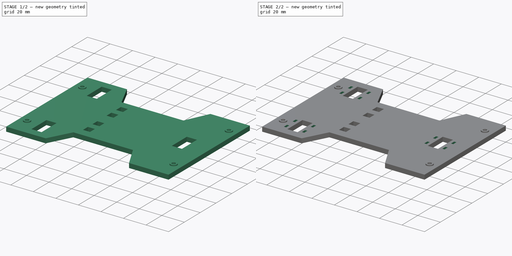
[diagram: build sequence overview — one tinted view per stage of 2, left to right]
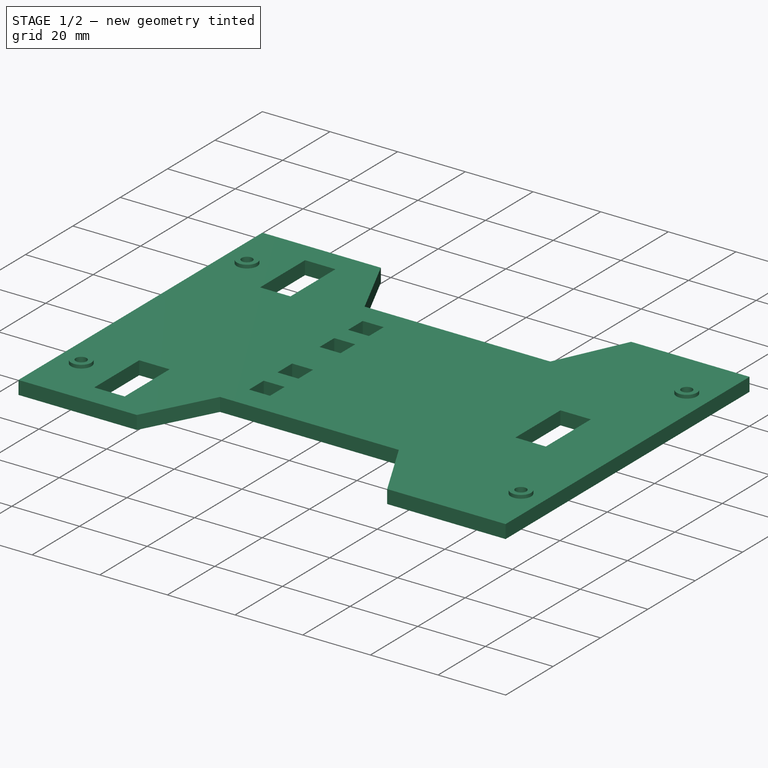
[diagram: stage 1 of 2 — iso view after this stage's code; geometry added in this stage tinted green]
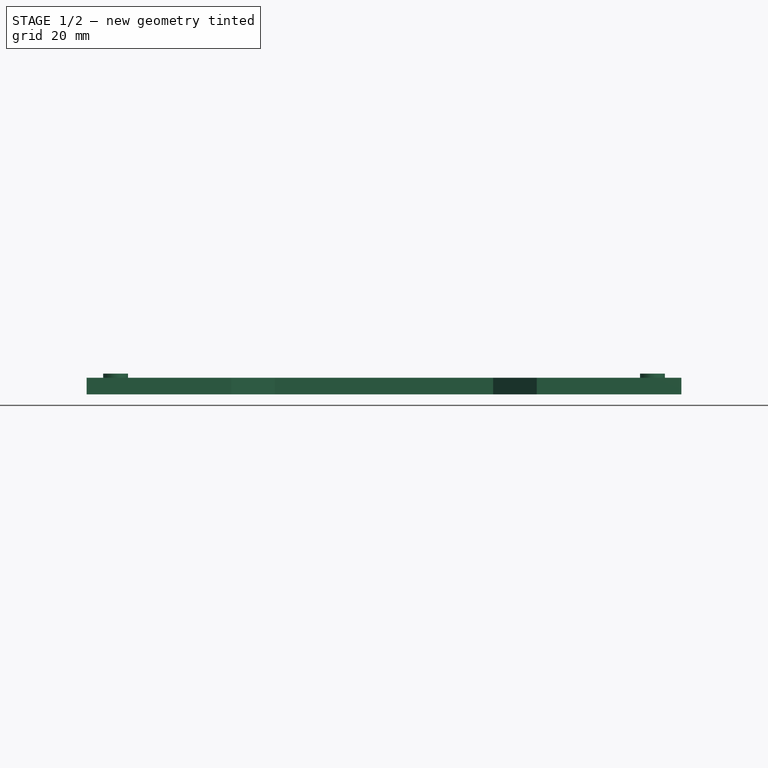
[diagram: stage 1 of 2 — front view after this stage's code; geometry added in this stage tinted green]
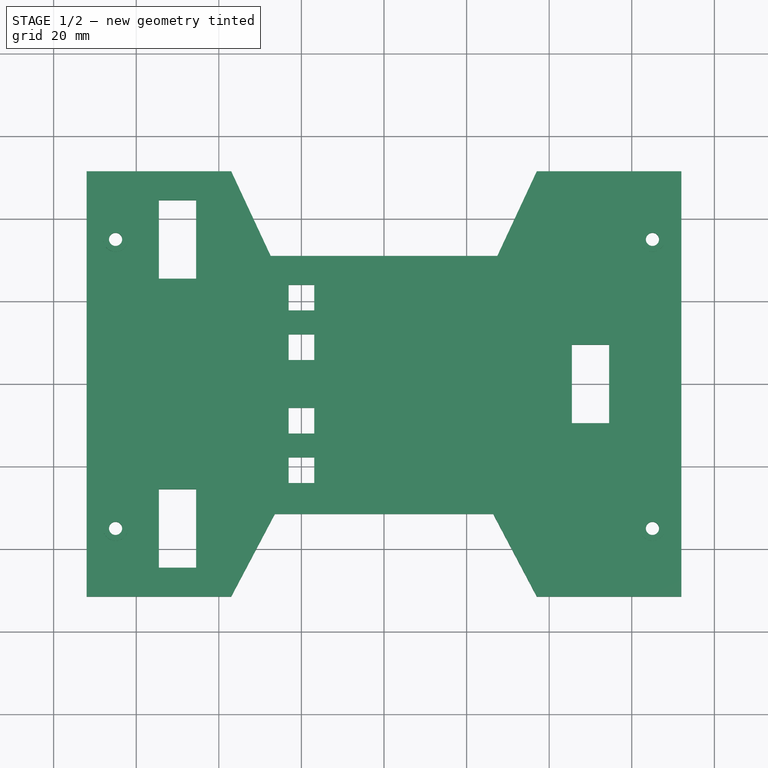
[diagram: stage 1 of 2 — top view after this stage's code; geometry added in this stage tinted green]
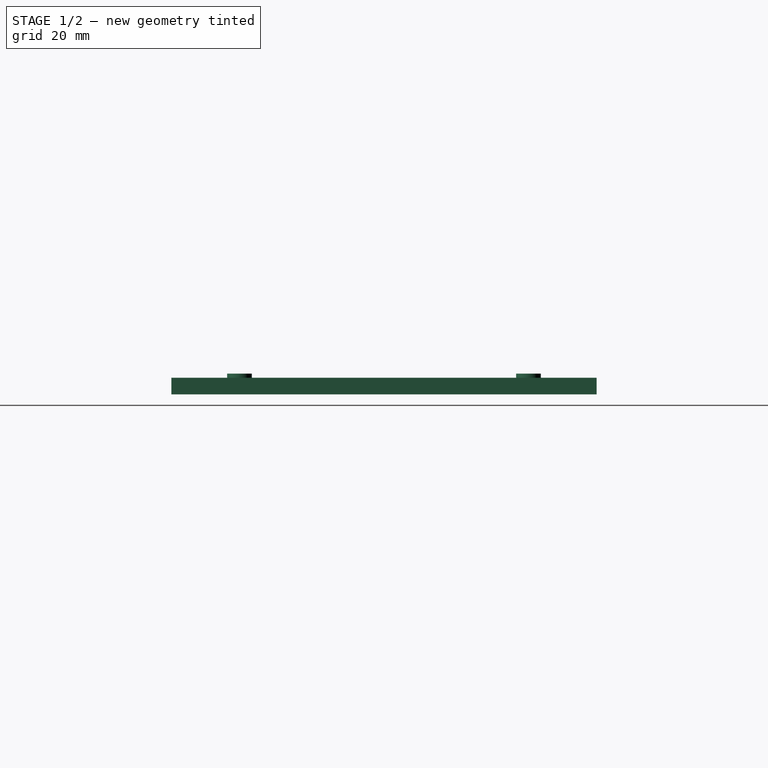
[diagram: stage 1 of 2 — right view after this stage's code; geometry added in this stage tinted green]
FCSTD DOCUMENT  (FreeCAD 0.14R3702 (Git))
Label: y-carriage-4points
License: CC-BY 3.0
LicenseURL: http://creativecommons.org/licenses/by/3.0/
objects: Sketcher::SketchObject×3, PartDesign::Pad×2, PartDesign::Pocket×1
note: 9 computed .brp shape members not serialized (recipe doc carries the construction recipe); baked Part::Feature solids carry a one-line shape summary decoded from their .brp

FEATURE [Sketcher::SketchObject] Sketch  label="YCarriageSketch"
  sketch-geometry (52):
    g0: LineSegment StartX=-72 StartY=51.5 StartZ=0 EndX=-37 EndY=51.5 EndZ=0
    g1: LineSegment StartX=-37 StartY=51.5 StartZ=0 EndX=-27.4407 EndY=31 EndZ=0
    g2: LineSegment StartX=-27.4407 StartY=31 StartZ=0 EndX=27.4407 EndY=31 EndZ=0
    g3: LineSegment StartX=27.4407 StartY=31 StartZ=0 EndX=37 EndY=51.5 EndZ=0
    g4: LineSegment StartX=37 StartY=51.5 StartZ=0 EndX=72 EndY=51.5 EndZ=0
    g5: LineSegment StartX=72 StartY=51.5 StartZ=0 EndX=72 EndY=-51.5 EndZ=0
    g6: LineSegment StartX=72 StartY=-51.5 StartZ=0 EndX=37 EndY=-51.5 EndZ=0
    g7: LineSegment StartX=37 StartY=-51.5 StartZ=0 EndX=26.4345 EndY=-31.5 EndZ=0
    g8: LineSegment StartX=26.4345 StartY=-31.5 StartZ=0 EndX=-26.4345 EndY=-31.5 EndZ=0
    g9: LineSegment StartX=-26.4345 StartY=-31.5 StartZ=0 EndX=-37 EndY=-51.5 EndZ=0
    g10: LineSegment StartX=-37 StartY=-51.5 StartZ=0 EndX=-72 EndY=-51.5 EndZ=0
    g11: LineSegment StartX=-72 StartY=-51.5 StartZ=0 EndX=-72 EndY=51.5 EndZ=0
    g12: LineSegment StartX=-54.5 StartY=44.5 StartZ=0 EndX=-45.5 EndY=44.5 EndZ=0
    g13: LineSegment StartX=-45.5 StartY=44.5 StartZ=0 EndX=-45.5 EndY=25.5 EndZ=0
    g14: LineSegment StartX=-45.5 StartY=25.5 StartZ=0 EndX=-54.5 EndY=25.5 EndZ=0
    g15: LineSegment StartX=-54.5 StartY=25.5 StartZ=0 EndX=-54.5 EndY=44.5 EndZ=0
    g16: LineSegment [constr] StartX=-50 StartY=-51.5 StartZ=0 EndX=-50 EndY=51.5 EndZ=0
    g17: LineSegment [constr] StartX=50 StartY=51.5 StartZ=0 EndX=50 EndY=-51.5 EndZ=0
    g18: LineSegment StartX=-54.5 StartY=-25.5 StartZ=0 EndX=-45.5 EndY=-25.5 EndZ=0
    g19: LineSegment StartX=-45.5 StartY=-25.5 StartZ=0 EndX=-45.5 EndY=-44.5 EndZ=0
    g20: LineSegment StartX=-45.5 StartY=-44.5 StartZ=0 EndX=-54.5 EndY=-44.5 EndZ=0
    g21: LineSegment StartX=-54.5 StartY=-44.5 StartZ=0 EndX=-54.5 EndY=-25.5 EndZ=0
    g22: LineSegment StartX=45.5 StartY=9.5 StartZ=0 EndX=54.5 EndY=9.5 EndZ=0
    g23: LineSegment StartX=54.5 StartY=9.5 StartZ=0 EndX=54.5 EndY=-9.5 EndZ=0
    g24: LineSegment StartX=54.5 StartY=-9.5 StartZ=0 EndX=45.5 EndY=-9.5 EndZ=0
    g25: LineSegment StartX=45.5 StartY=-9.5 StartZ=0 EndX=45.5 EndY=9.5 EndZ=0
    g26: LineSegment [constr] StartX=-50 StartY=0 StartZ=0 EndX=50 EndY=0 EndZ=0
    g27: Circle CenterX=65 CenterY=35 CenterZ=0 NormalX=0 NormalY=0 NormalZ=1 Radius=1.6
    g28: Circle CenterX=65 CenterY=-35 CenterZ=0 NormalX=0 NormalY=0 NormalZ=1 Radius=1.6
    g29: Circle CenterX=-65 CenterY=35 CenterZ=0 NormalX=0 NormalY=0 NormalZ=1 Radius=1.6
    g30: Circle CenterX=-65 CenterY=-35 CenterZ=0 NormalX=0 NormalY=0 NormalZ=1 Radius=1.6
    g31: LineSegment [constr] StartX=-65 StartY=35 StartZ=0 EndX=65 EndY=35 EndZ=0
    g32: LineSegment [constr] StartX=65 StartY=35 StartZ=0 EndX=65 EndY=-35 EndZ=0
    g33: LineSegment [constr] StartX=65 StartY=-35 StartZ=0 EndX=-65 EndY=-35 EndZ=0
    g34: LineSegment [constr] StartX=-65 StartY=-35 StartZ=0 EndX=-65 EndY=35 EndZ=0
    g35: LineSegment [constr] StartX=-20 StartY=24 StartZ=0 EndX=-20 EndY=-24 EndZ=0
    g36: LineSegment StartX=-23.1 StartY=24 StartZ=0 EndX=-16.9 EndY=24 EndZ=0
    g37: LineSegment StartX=-16.9 StartY=24 StartZ=0 EndX=-16.9 EndY=17.8 EndZ=0
    g38: LineSegment StartX=-16.9 StartY=17.8 StartZ=0 EndX=-23.1 EndY=17.8 EndZ=0
    g39: LineSegment StartX=-23.1 StartY=17.8 StartZ=0 EndX=-23.1 EndY=24 EndZ=0
    g40: LineSegment StartX=-23.1 StartY=12 StartZ=0 EndX=-16.9 EndY=12 EndZ=0
    g41: LineSegment StartX=-16.9 StartY=12 StartZ=0 EndX=-16.9 EndY=5.8 EndZ=0
    g42: LineSegment StartX=-16.9 StartY=5.8 StartZ=0 EndX=-23.1 EndY=5.8 EndZ=0
    g43: LineSegment StartX=-23.1 StartY=5.8 StartZ=0 EndX=-23.1 EndY=12 EndZ=0
    g44: LineSegment StartX=-23.1 StartY=-17.8 StartZ=0 EndX=-16.9 EndY=-17.8 EndZ=0
    g45: LineSegment StartX=-16.9 StartY=-17.8 StartZ=0 EndX=-16.9 EndY=-24 EndZ=0
    g46: LineSegment StartX=-16.9 StartY=-24 StartZ=0 EndX=-23.1 EndY=-24 EndZ=0
    g47: LineSegment StartX=-23.1 StartY=-24 StartZ=0 EndX=-23.1 EndY=-17.8 EndZ=0
    g48: LineSegment StartX=-23.1 StartY=-5.8 StartZ=0 EndX=-16.9 EndY=-5.8 EndZ=0
    g49: LineSegment StartX=-16.9 StartY=-5.8 StartZ=0 EndX=-16.9 EndY=-12 EndZ=0
    g50: LineSegment StartX=-16.9 StartY=-12 StartZ=0 EndX=-23.1 EndY=-12 EndZ=0
    g51: LineSegment StartX=-23.1 StartY=-12 StartZ=0 EndX=-23.1 EndY=-5.8 EndZ=0
  constraints (153):
    c: Coincident(g0,g1)
    c: Coincident(g1,g2)
    c: Coincident(g2,g3)
    c: Coincident(g3,g4)
    c: Coincident(g4,g5)
    c: Coincident(g5,g6)
    c: Coincident(g6,g7)
    c: Coincident(g7,g8)
    c: Coincident(g8,g9)
    c: Coincident(g9,g10)
    c: Coincident(g10,g11)
    c: Coincident(g0,g11)
    c: Horizontal(g0)
    c: Horizontal(g4)
    c: Horizontal(g2)
    c: Horizontal(g10)
    c: Horizontal(g6)
    c: Vertical(g11)
    c: Vertical(g5)
    c: Equal(g0,g4)
    c: Equal(g4,g6)
    c: Equal(g6,g10)
    c: Angle(g3,g4) = 2.00713
    c: DistanceY(g5) = -103
    c: Equal(g11,g5)
    c: DistanceX(g10,g5) = 144
    c: Symmetric(g5,g10,g-2)
    c: Symmetric(g7,g8,g-2)
    c: DistanceY(g6,g7) = 20
    c: Equal(g3,g1)
    c: Equal(g1,g9)
    c: Equal(g9,g7)
    c: Symmetric(g10,g0,g-1)
    c: Coincident(g12,g13)
    c: Coincident(g13,g14)
    c: Coincident(g14,g15)
    c: Coincident(g15,g12)
    c: Horizontal(g12)
    c: Horizontal(g14)
    c: Vertical(g13)
    c: Vertical(g15)
    c: PointOnObject(g16,g0)
    c: PointOnObject(g16,g10)
    c: Vertical(g17)
    c: PointOnObject(g17,g4)
    c: PointOnObject(g17,g6)
    c: DistanceX(g12) = 9
    c: DistanceY(g13) = -19
    c: Symmetric(g13,g14,g16)
    c: Coincident(g18,g19)
    c: Coincident(g19,g20)
    c: Coincident(g20,g21)
    c: Coincident(g21,g18)
    c: Horizontal(g18)
    c: Horizontal(g20)
    c: Vertical(g19)
    c: Vertical(g21)
    c: Coincident(g22,g23)
    c: Coincident(g23,g24)
    c: Coincident(g24,g25)
    c: Coincident(g25,g22)
    c: Horizontal(g22)
    c: Horizontal(g24)
    c: Vertical(g23)
    c: Vertical(g25)
    c: Equal(g12,g18)
    c: Equal(g18,g22)
    c: Equal(g13,g23)
    c: Equal(g23,g19)
    c: Symmetric(g19,g20,g16)
    c: Symmetric(g24,g22,g-1)
    c: Symmetric(g24,g23,g17)
    c: Symmetric(g26,g26,g-2)
    c: PointOnObject(g26,g16)
    c: PointOnObject(g26,g17)
    c: PointOnObject(g-1,g26)
    c: DistanceX(g26) = 100
    c: DistanceY(g12,g0) = 7
    c: Symmetric(g18,g14,g-1)
    c: Equal(g29,g27)
    c: Equal(g27,g28)
    c: Equal(g28,g30)
    c: Coincident(g31,g32)
    c: Coincident(g32,g33)
    c: Coincident(g33,g34)
    c: Coincident(g34,g31)
    c: Horizontal(g31)
    c: Horizontal(g33)
    c: Vertical(g32)
    c: Vertical(g34)
    c: Coincident(g31,g29)
    c: Coincident(g31,g27)
    c: Coincident(g32,g28)
    c: Coincident(g33,g30)
    c: Radius(g28) = 1.6
    c: Symmetric(g27,g29,g-2)
    c: Symmetric(g30,g29,g-1)
    c: DistanceY(g32) = -70
    c: DistanceX(g33) = -130
    c: Symmetric(g35,g35,g26)
    c: DistanceY(g35) = -48
    c: DistanceX(g16,g35) = 30
    c: Coincident(g36,g37)
    c: Coincident(g37,g38)
    c: Coincident(g38,g39)
    c: Coincident(g39,g36)
    c: Horizontal(g36)
    c: Horizontal(g38)
    c: Vertical(g37)
    c: Vertical(g39)
    c: Coincident(g40,g41)
    c: Coincident(g41,g42)
    c: Coincident(g42,g43)
    c: Coincident(g43,g40)
    c: Horizontal(g40)
    c: Horizontal(g42)
    c: Vertical(g41)
    c: Vertical(g43)
    c: Coincident(g44,g45)
    c: Coincident(g45,g46)
    c: Coincident(g46,g47)
    c: Coincident(g47,g44)
    c: Horizontal(g44)
    c: Horizontal(g46)
    c: Vertical(g45)
    c: Vertical(g47)
    c: Coincident(g48,g49)
    c: Coincident(g49,g50)
    c: Coincident(g50,g51)
    c: Coincident(g51,g48)
    c: Horizontal(g48)
    c: Horizontal(g50)
    c: Vertical(g49)
    c: Vertical(g51)
    c: Equal(g46,g45)
    c: Equal(g45,g50)
    c: Equal(g50,g49)
    c: Equal(g49,g42)
    c: Equal(g42,g41)
    c: Equal(g41,g38)
    c: Equal(g38,g37)
    c: DistanceY(g45) = -6.2
    c: Symmetric(g45,g46,g35)
    c: Symmetric(g49,g50,g35)
    c: Symmetric(g40,g40,g35)
    c: Symmetric(g36,g36,g35)
    c: PointOnObject(g35,g46)
    c: PointOnObject(g35,g36)
    c: DistanceY(g37,g41) = -12
    c: DistanceY(g46,g50) = 12
    c: DistanceX(g4) = 35
    c: DistanceY(g8,g46) = 7.5
    c: DistanceY(g1,g36) = -7
FEATURE [PartDesign::Pad] Pad  label="YCarriagePad"
  Length = 4
  Length2 = 100
  Sketch = -> Sketch
  Type = 0
FEATURE [Sketcher::SketchObject] Sketch001  label="ScrewsSketch"
  ExternalGeometry = -> [Pad]
  Placement = pos=(0,0,4) rot=(0,0,1;0rad)
  Support = -> Pad [Face46]
  sketch-geometry (8):
    g0: Circle CenterX=-65 CenterY=35 CenterZ=0 NormalX=0 NormalY=0 NormalZ=1 Radius=1.6
    g1: Circle CenterX=65 CenterY=35 CenterZ=0 NormalX=0 NormalY=0 NormalZ=1 Radius=1.6
    g2: Circle CenterX=-65 CenterY=-35 CenterZ=0 NormalX=0 NormalY=0 NormalZ=1 Radius=1.6
    g3: Circle CenterX=65 CenterY=-35 CenterZ=0 NormalX=0 NormalY=0 NormalZ=1 Radius=1.6
    g4: Circle CenterX=65 CenterY=35 CenterZ=0 NormalX=0 NormalY=0 NormalZ=1 Radius=3
    g5: Circle CenterX=-65 CenterY=35 CenterZ=0 NormalX=0 NormalY=0 NormalZ=1 Radius=3
    g6: Circle CenterX=-65 CenterY=-35 CenterZ=0 NormalX=0 NormalY=0 NormalZ=1 Radius=3
    g7: Circle CenterX=65 CenterY=-35 CenterZ=0 NormalX=0 NormalY=0 NormalZ=1 Radius=3
  constraints (16):
    c: Equal(g7,g4)
    c: Equal(g4,g5)
    c: Equal(g5,g6)
    c: Equal(g0,g2)
    c: Equal(g2,g3)
    c: Equal(g3,g1)
    c: Equal(g-3,g0)
    c: Coincident(g-3,g0)
    c: Coincident(g-4,g1)
    c: Coincident(g-5,g3)
    c: Coincident(g-6,g2)
    c: Radius(g6) = 3
    c: Coincident(g2,g6)
    c: Coincident(g3,g7)
    c: Coincident(g1,g4)
    c: Coincident(g0,g5)
FEATURE [PartDesign::Pad] Pad001  label="ScrewsPad"
  Length = 1
  Length2 = 100
  Sketch = -> Sketch001
  Type = 0
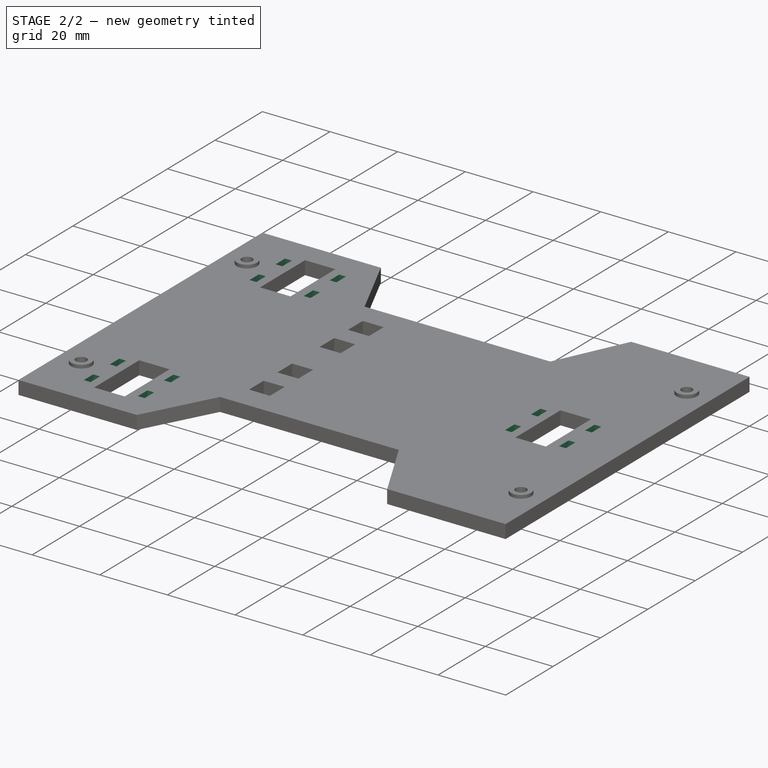
[diagram: stage 2 of 2 — iso view after this stage's code; geometry added in this stage tinted green]
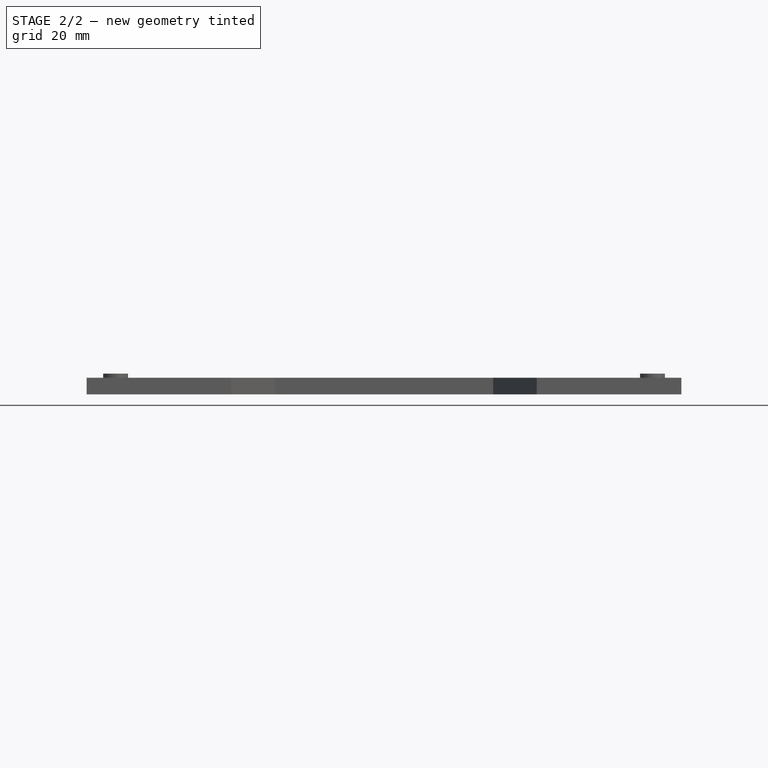
[diagram: stage 2 of 2 — front view after this stage's code; geometry added in this stage tinted green]
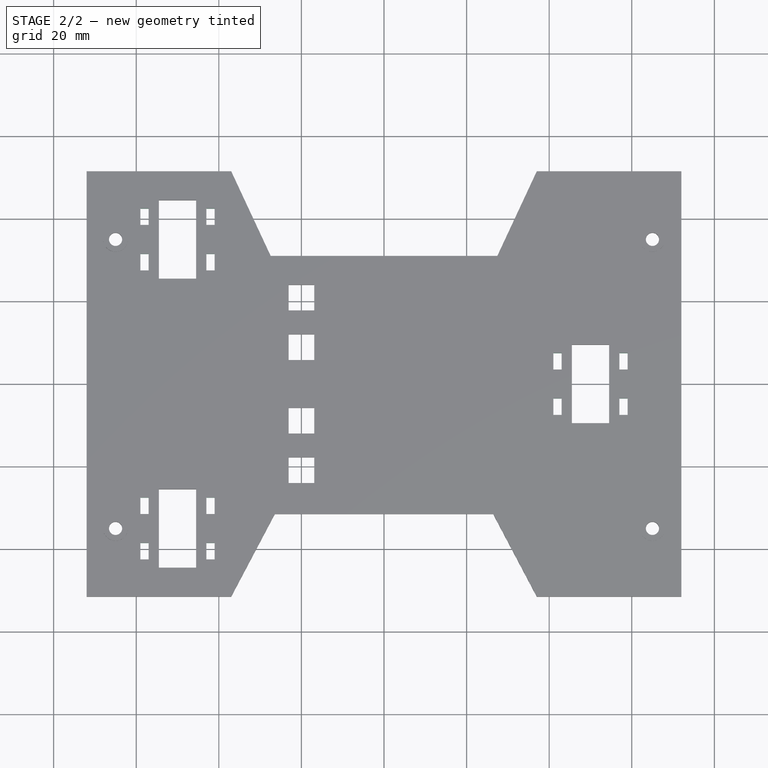
[diagram: stage 2 of 2 — top view after this stage's code; geometry added in this stage tinted green]
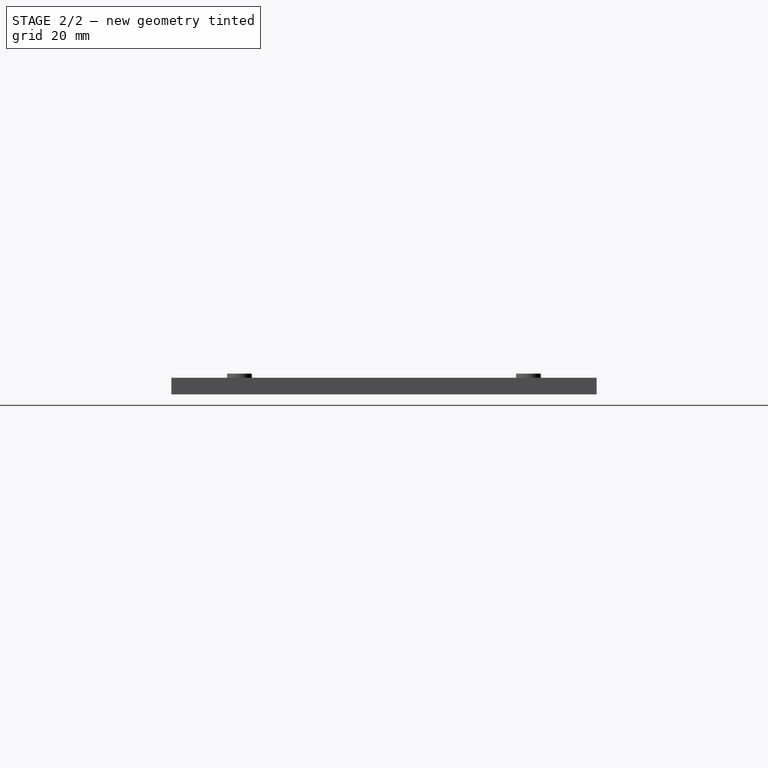
[diagram: stage 2 of 2 — right view after this stage's code; geometry added in this stage tinted green]
FEATURE [Sketcher::SketchObject] Sketch002  label="ClampsSketch"
  ExternalGeometry = -> [Pad001]
  Placement = pos=(0,0,4) rot=(0,0,1;0rad)
  Support = -> Pad001 [Face5]
  sketch-geometry (65):
    g0: LineSegment StartX=-43 StartY=42.5 StartZ=0 EndX=-41 EndY=42.5 EndZ=0
    g1: LineSegment StartX=-41 StartY=42.5 StartZ=0 EndX=-41 EndY=38.5 EndZ=0
    g2: LineSegment StartX=-41 StartY=38.5 StartZ=0 EndX=-43 EndY=38.5 EndZ=0
    g3: LineSegment StartX=-43 StartY=38.5 StartZ=0 EndX=-43 EndY=42.5 EndZ=0
    g4: LineSegment StartX=-43 StartY=31.5 StartZ=0 EndX=-41 EndY=31.5 EndZ=0
    g5: LineSegment StartX=-41 StartY=31.5 StartZ=0 EndX=-41 EndY=27.5 EndZ=0
    g6: LineSegment StartX=-41 StartY=27.5 StartZ=0 EndX=-43 EndY=27.5 EndZ=0
    g7: LineSegment StartX=-43 StartY=27.5 StartZ=0 EndX=-43 EndY=31.5 EndZ=0
    g8: LineSegment StartX=-59 StartY=42.5 StartZ=0 EndX=-57 EndY=42.5 EndZ=0
    g9: LineSegment StartX=-57 StartY=42.5 StartZ=0 EndX=-57 EndY=38.5 EndZ=0
    g10: LineSegment StartX=-57 StartY=38.5 StartZ=0 EndX=-59 EndY=38.5 EndZ=0
    g11: LineSegment StartX=-59 StartY=38.5 StartZ=0 EndX=-59 EndY=42.5 EndZ=0
    g12: LineSegment StartX=-59 StartY=31.5 StartZ=0 EndX=-57 EndY=31.5 EndZ=0
    g13: LineSegment StartX=-57 StartY=31.5 StartZ=0 EndX=-57 EndY=27.5 EndZ=0
    g14: LineSegment StartX=-57 StartY=27.5 StartZ=0 EndX=-59 EndY=27.5 EndZ=0
    g15: LineSegment StartX=-59 StartY=27.5 StartZ=0 EndX=-59 EndY=31.5 EndZ=0
    g16: LineSegment StartX=41 StartY=7.5 StartZ=0 EndX=43 EndY=7.5 EndZ=0
    g17: LineSegment StartX=43 StartY=7.5 StartZ=0 EndX=43 EndY=3.5 EndZ=0
    g18: LineSegment StartX=43 StartY=3.5 StartZ=0 EndX=41 EndY=3.5 EndZ=0
    g19: LineSegment StartX=41 StartY=3.5 StartZ=0 EndX=41 EndY=7.5 EndZ=0
    g20: LineSegment StartX=57 StartY=7.5 StartZ=0 EndX=59 EndY=7.5 EndZ=0
    g21: LineSegment StartX=59 StartY=7.5 StartZ=0 EndX=59 EndY=3.5 EndZ=0
    g22: LineSegment StartX=59 StartY=3.5 StartZ=0 EndX=57 EndY=3.5 EndZ=0
    g23: LineSegment StartX=57 StartY=3.5 StartZ=0 EndX=57 EndY=7.5 EndZ=0
    g24: LineSegment StartX=57 StartY=-3.5 StartZ=0 EndX=59 EndY=-3.5 EndZ=0
    g25: LineSegment StartX=59 StartY=-3.5 StartZ=0 EndX=59 EndY=-7.5 EndZ=0
    g26: LineSegment StartX=59 StartY=-7.5 StartZ=0 EndX=57 EndY=-7.5 EndZ=0
    g27: LineSegment StartX=57 StartY=-7.5 StartZ=0 EndX=57 EndY=-3.5 EndZ=0
    g28: LineSegment StartX=41 StartY=-3.5 StartZ=0 EndX=43 EndY=-3.5 EndZ=0
    g29: LineSegment StartX=43 StartY=-3.5 StartZ=0 EndX=43 EndY=-7.5 EndZ=0
    g30: LineSegment StartX=43 StartY=-7.5 StartZ=0 EndX=41 EndY=-7.5 EndZ=0
    g31: LineSegment StartX=41 StartY=-7.5 StartZ=0 EndX=41 EndY=-3.5 EndZ=0
    g32: LineSegment StartX=-43 StartY=-27.5 StartZ=0 EndX=-41 EndY=-27.5 EndZ=0
    g33: LineSegment StartX=-41 StartY=-27.5 StartZ=0 EndX=-41 EndY=-31.5 EndZ=0
    g34: LineSegment StartX=-41 StartY=-31.5 StartZ=0 EndX=-43 EndY=-31.5 EndZ=0
    g35: LineSegment StartX=-43 StartY=-31.5 StartZ=0 EndX=-43 EndY=-27.5 EndZ=0
    g36: LineSegment StartX=-59 StartY=-27.5 StartZ=0 EndX=-57 EndY=-27.5 EndZ=0
    g37: LineSegment StartX=-57 StartY=-27.5 StartZ=0 EndX=-57 EndY=-31.5 EndZ=0
    g38: LineSegment StartX=-57 StartY=-31.5 StartZ=0 EndX=-59 EndY=-31.5 EndZ=0
    g39: LineSegment StartX=-59 StartY=-31.5 StartZ=0 EndX=-59 EndY=-27.5 EndZ=0
    g40: LineSegment StartX=-43 StartY=-38.5 StartZ=0 EndX=-41 EndY=-38.5 EndZ=0
    g41: LineSegment StartX=-41 StartY=-38.5 StartZ=0 EndX=-41 EndY=-42.5 EndZ=0
    g42: LineSegment StartX=-41 StartY=-42.5 StartZ=0 EndX=-43 EndY=-42.5 EndZ=0
    g43: LineSegment StartX=-43 StartY=-42.5 StartZ=0 EndX=-43 EndY=-38.5 EndZ=0
    g44: LineSegment StartX=-59 StartY=-38.5 StartZ=0 EndX=-57 EndY=-38.5 EndZ=0
    g45: LineSegment StartX=-57 StartY=-38.5 StartZ=0 EndX=-57 EndY=-42.5 EndZ=0
    g46: LineSegment StartX=-57 StartY=-42.5 StartZ=0 EndX=-59 EndY=-42.5 EndZ=0
    g47: LineSegment StartX=-59 StartY=-42.5 StartZ=0 EndX=-59 EndY=-38.5 EndZ=0
    g48: LineSegment [constr] StartX=43 StartY=3.5 StartZ=0 EndX=57 EndY=3.5 EndZ=0
    g49: LineSegment [constr] StartX=57 StartY=3.5 StartZ=0 EndX=57 EndY=-3.5 EndZ=0
    g50: LineSegment [constr] StartX=57 StartY=-3.5 StartZ=0 EndX=43 EndY=-3.5 EndZ=0
    g51: LineSegment [constr] StartX=43 StartY=-3.5 StartZ=0 EndX=43 EndY=3.5 EndZ=0
    g52: LineSegment [constr] StartX=50 StartY=9.5 StartZ=0 EndX=50 EndY=-9.5 EndZ=0
    g53: LineSegment [constr] StartX=-50 StartY=44.5 StartZ=0 EndX=-50 EndY=25.5 EndZ=0
    g54: LineSegment [constr] StartX=-50 StartY=-25.5 StartZ=0 EndX=-50 EndY=-44.5 EndZ=0
    g55: LineSegment [constr] StartX=-57 StartY=38.5 StartZ=0 EndX=-43 EndY=38.5 EndZ=0
    g56: LineSegment [constr] StartX=-43 StartY=38.5 StartZ=0 EndX=-43 EndY=31.5 EndZ=0
    g57: LineSegment [constr] StartX=-43 StartY=31.5 StartZ=0 EndX=-57 EndY=31.5 EndZ=0
    g58: LineSegment [constr] StartX=-57 StartY=31.5 StartZ=0 EndX=-57 EndY=38.5 EndZ=0
    g59: LineSegment [constr] StartX=-57 StartY=-31.5 StartZ=0 EndX=-43 EndY=-31.5 EndZ=0
    g60: LineSegment [constr] StartX=-43 StartY=-31.5 StartZ=0 EndX=-43 EndY=-38.5 EndZ=0
    g61: LineSegment [constr] StartX=-43 StartY=-38.5 StartZ=0 EndX=-57 EndY=-38.5 EndZ=0
    g62: LineSegment [constr] StartX=-57 StartY=-38.5 StartZ=0 EndX=-57 EndY=-31.5 EndZ=0
    g63: LineSegment [constr] StartX=-57 StartY=35 StartZ=0 EndX=-43 EndY=35 EndZ=0
    g64: LineSegment [constr] StartX=-57 StartY=-35 StartZ=0 EndX=-43 EndY=-35 EndZ=0
  constraints (176):
    c: Coincident(g0,g1)
    c: Coincident(g1,g2)
    c: Coincident(g2,g3)
    c: Coincident(g3,g0)
    c: Horizontal(g0)
    c: Horizontal(g2)
    c: Vertical(g1)
    c: Vertical(g3)
    c: Coincident(g4,g5)
    c: Coincident(g5,g6)
    c: Coincident(g6,g7)
    c: Coincident(g7,g4)
    c: Horizontal(g4)
    c: Horizontal(g6)
    c: Vertical(g5)
    c: Vertical(g7)
    c: Coincident(g8,g9)
    c: Coincident(g9,g10)
    c: Coincident(g10,g11)
    c: Coincident(g11,g8)
    c: Horizontal(g8)
    c: Horizontal(g10)
    c: Vertical(g9)
    c: Vertical(g11)
    c: Coincident(g12,g13)
    c: Coincident(g13,g14)
    c: Coincident(g14,g15)
    c: Coincident(g15,g12)
    c: Horizontal(g12)
    c: Horizontal(g14)
    c: Vertical(g13)
    c: Vertical(g15)
    c: Coincident(g16,g17)
    c: Coincident(g17,g18)
    c: Coincident(g18,g19)
    c: Coincident(g19,g16)
    c: Horizontal(g16)
    c: Horizontal(g18)
    c: Vertical(g17)
    c: Vertical(g19)
    c: Coincident(g20,g21)
    c: Coincident(g21,g22)
    c: Coincident(g22,g23)
    c: Coincident(g23,g20)
    c: Horizontal(g20)
    c: Horizontal(g22)
    c: Vertical(g21)
    c: Vertical(g23)
    c: Coincident(g24,g25)
    c: Coincident(g25,g26)
    c: Coincident(g26,g27)
    c: Coincident(g27,g24)
    c: Horizontal(g24)
    c: Horizontal(g26)
    c: Vertical(g25)
    c: Vertical(g27)
    c: Coincident(g28,g29)
    c: Coincident(g29,g30)
    c: Coincident(g30,g31)
    c: Coincident(g31,g28)
    c: Horizontal(g28)
    c: Horizontal(g30)
    c: Vertical(g29)
    c: Vertical(g31)
    c: Coincident(g32,g33)
    c: Coincident(g33,g34)
    c: Coincident(g34,g35)
    c: Coincident(g35,g32)
    c: Horizontal(g32)
    c: Horizontal(g34)
    c: Vertical(g33)
    c: Vertical(g35)
    c: Coincident(g36,g37)
    c: Coincident(g37,g38)
    c: Coincident(g38,g39)
    c: Coincident(g39,g36)
    c: Horizontal(g36)
    c: Horizontal(g38)
    c: Vertical(g37)
    c: Vertical(g39)
    c: Coincident(g40,g41)
    c: Coincident(g41,g42)
    c: Coincident(g42,g43)
    c: Coincident(g43,g40)
    c: Horizontal(g40)
    c: Horizontal(g42)
    c: Vertical(g41)
    c: Vertical(g43)
    c: Coincident(g44,g45)
    c: Coincident(g45,g46)
    c: Coincident(g46,g47)
    c: Coincident(g47,g44)
    c: Horizontal(g44)
    c: Horizontal(g46)
    c: Vertical(g45)
    c: Vertical(g47)
    c: Equal(g8,g0)
    c: Equal(g0,g12)
    c: Equal(g12,g4)
    c: Equal(g4,g16)
    c: Equal(g16,g20)
    c: Equal(g20,g24)
    c: Equal(g24,g28)
    c: Equal(g28,g32)
    c: Equal(g32,g44)
    c: Equal(g44,g36)
    c: Equal(g36,g40)
    c: Equal(g29,g17)
    c: Equal(g17,g21)
    c: Equal(g21,g25)
    c: Equal(g25,g33)
    c: Equal(g33,g41)
    c: Equal(g41,g45)
    c: Equal(g45,g37)
    c: Equal(g37,g13)
    c: Equal(g13,g9)
    c: Equal(g9,g1)
    c: Equal(g1,g5)
    c: DistanceX(g0) = 2
    c: DistanceY(g5) = -4
    c: Symmetric(g28,g17,g-1)
    c: Coincident(g48,g49)
    c: Coincident(g49,g50)
    c: Coincident(g50,g51)
    c: Coincident(g51,g48)
    c: Horizontal(g48)
    c: Horizontal(g50)
    c: Vertical(g49)
    c: Vertical(g51)
    c: Coincident(g17,g48)
    c: DistanceY(g51) = 7
    c: Coincident(g28,g50)
    c: Coincident(g48,g22)
    c: Coincident(g49,g24)
    c: DistanceX(g48) = 14
    c: Symmetric(g-3,g-3,g52)
    c: Symmetric(g-4,g-4,g52)
    c: Symmetric(g22,g17,g52)
    c: Symmetric(g-8,g-8,g54)
    c: Symmetric(g-7,g-7,g54)
    c: Symmetric(g-6,g-6,g53)
    c: Symmetric(g-5,g-5,g53)
    c: Coincident(g55,g56)
    c: Coincident(g56,g57)
    c: Coincident(g57,g58)
    c: Coincident(g58,g55)
    c: Horizontal(g55)
    c: Vertical(g56)
    c: Vertical(g58)
    c: Coincident(g59,g60)
    c: Coincident(g60,g61)
    c: Coincident(g61,g62)
    c: Coincident(g62,g59)
    c: Horizontal(g61)
    c: Vertical(g60)
    c: Vertical(g62)
    c: Equal(g59,g55)
    c: Equal(g55,g48)
    c: Equal(g49,g58)
    c: Equal(g58,g62)
    c: Symmetric(g56,g57,g53)
    c: Symmetric(g56,g56,g63)
    c: Symmetric(g58,g58,g63)
    c: Coincident(g2,g55)
    c: Coincident(g56,g4)
    c: Coincident(g9,g55)
    c: Coincident(g57,g12)
    c: Symmetric(g60,g60,g64)
    c: Symmetric(g62,g62,g64)
    c: Symmetric(g59,g59,g54)
    c: Symmetric(g-8,g-7,g64)
    c: Coincident(g59,g34)
    c: Coincident(g37,g59)
    c: Coincident(g61,g44)
    c: Coincident(g60,g40)
    c: Symmetric(g-6,g-5,g63)
FEATURE [PartDesign::Pocket] Pocket  label="ClampsPocket"
  Length = 5
  Sketch = -> Sketch002
  Type = 1
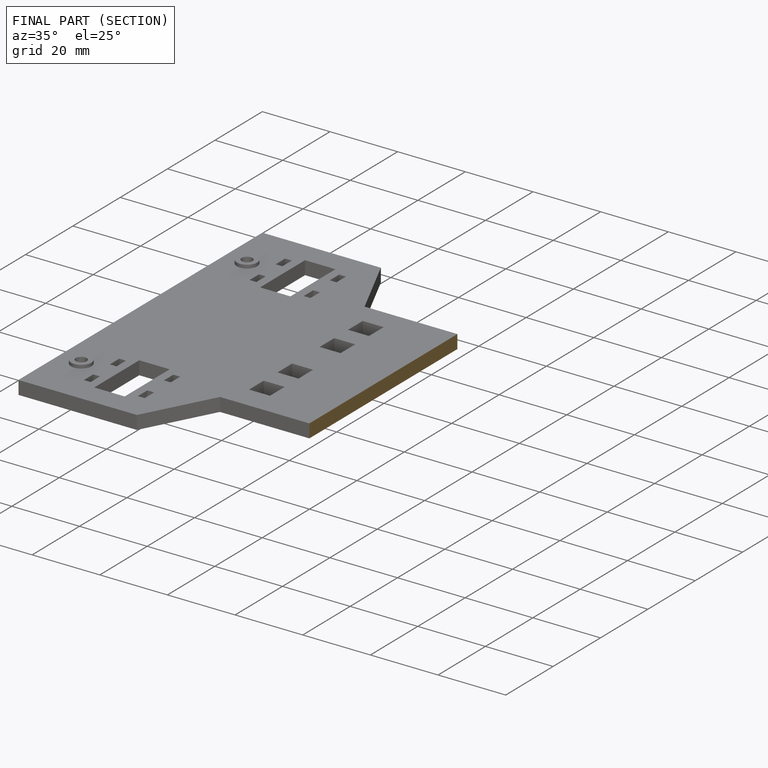
[diagram: finished part — half-section view (interior)]
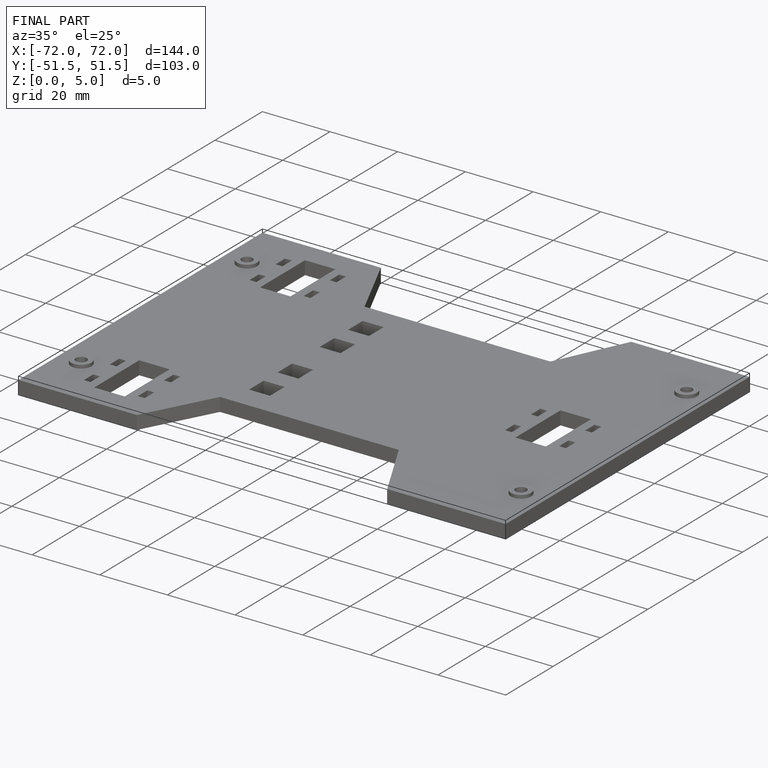
[diagram: finished part — iso view with bounding-box wireframe]
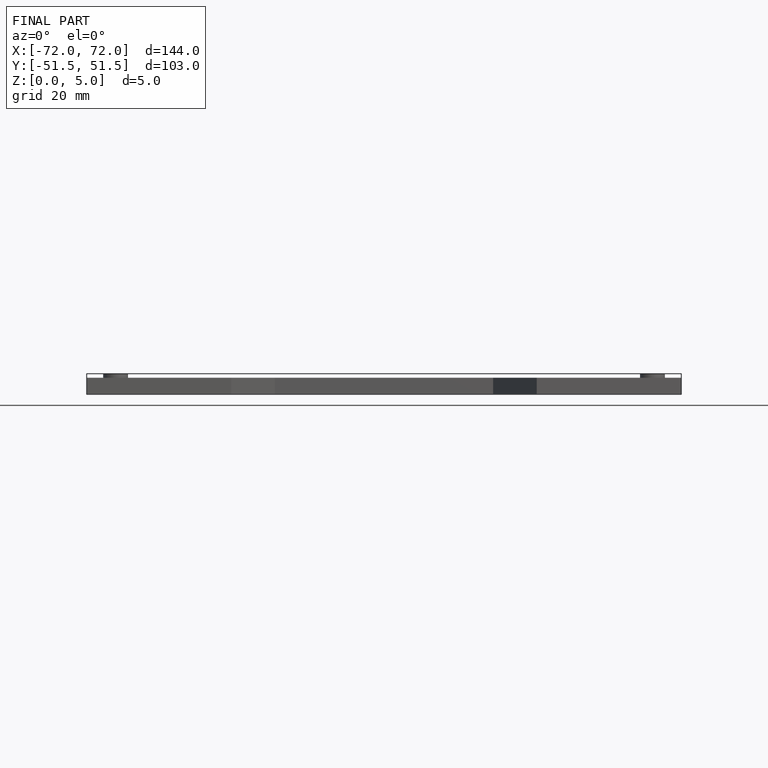
[diagram: finished part — front view with bounding-box wireframe]
